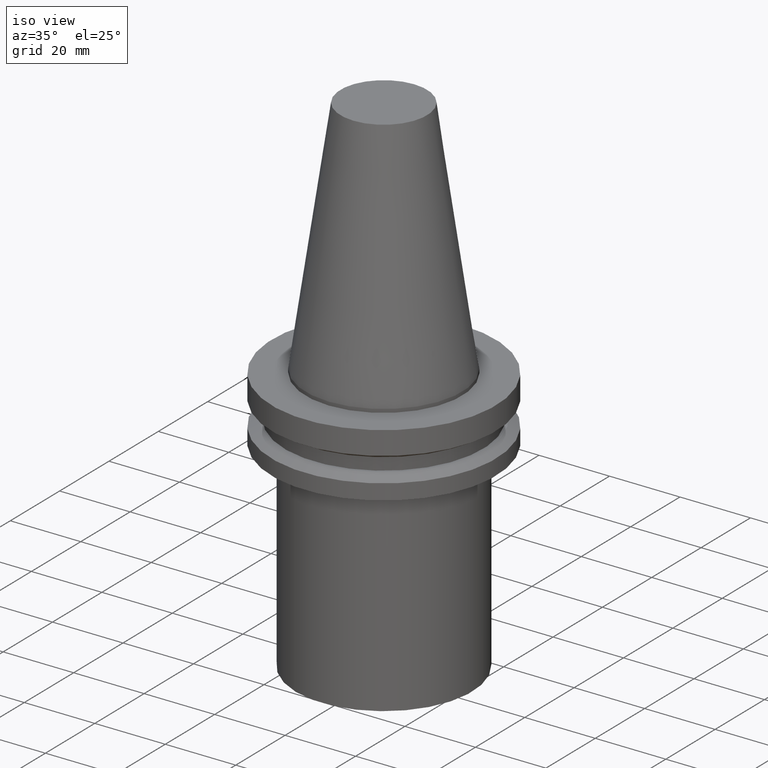
[diagram: clean part render]
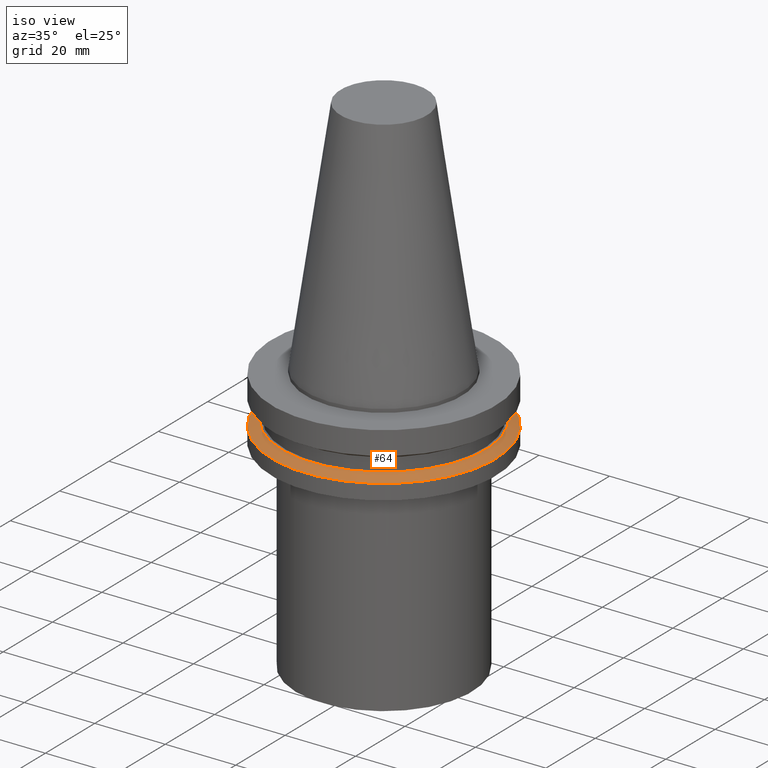
[diagram: same view with one face highlighted and labeled with its STEP entity id]
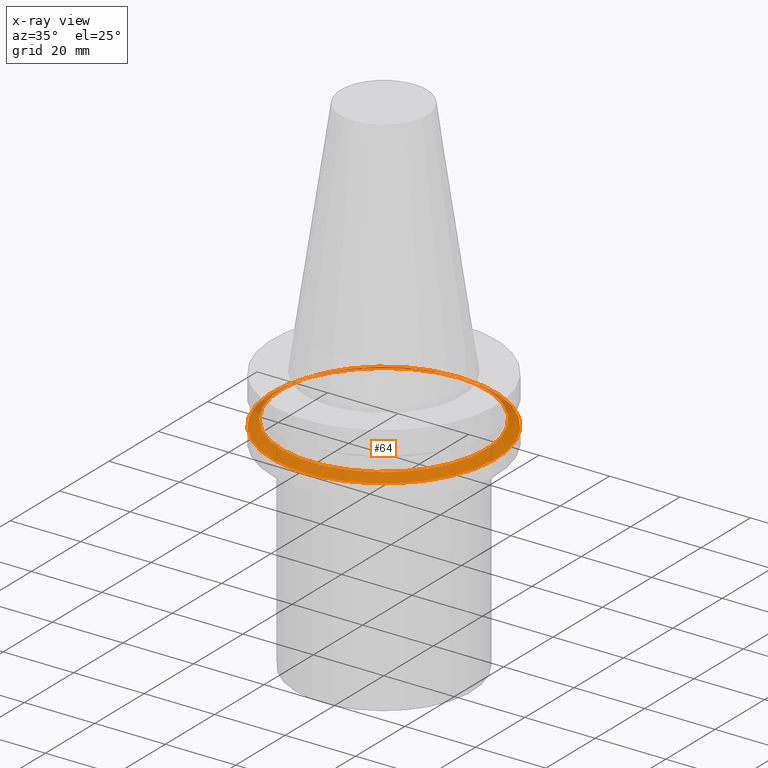
[diagram: x-ray of the same camera — body ghosted, the highlighted face saturated]
A machine part, iso view. The second image highlights one B-rep face of the part: STEP entity #64.
The next image is the same camera in x-ray: the body ghosted, the highlighted face saturated — about 11% of this face is hidden behind the body in this view.
In plain terms, the highlighted conical surface has half-angle 60 deg.
Its self-contained STEP definition (entity closure, byte-faithful):
#64=ADVANCED_FACE('Unnamed[1]',(#161,#162),#163,.T.);
#116=EDGE_CURVE('Unnamed[1]',#242,#242,#243,.T.);
#125=EDGE_CURVE('Unnamed[1]',#256,#256,#257,.T.);
#161=FACE_BOUND('',#290,.T.);
#162=FACE_BOUND('',#291,.T.);
#163=CONICAL_SURFACE('',#292,30.3587792269259,1.0471975511966);
#242=VERTEX_POINT('',#390);
#243=CIRCLE('',#391,31.7499999999999);
#256=VERTEX_POINT('',#408);
#257=CIRCLE('',#409,28.9675584538519);
#290=EDGE_LOOP('',(#433));
#291=EDGE_LOOP('',(#434));
#292=AXIS2_PLACEMENT_3D('',#435,#436,#437);
#390=CARTESIAN_POINT('',(8.96835999945531E-016,31.7499999999999,-14.6464433756728));
#391=AXIS2_PLACEMENT_3D('',#524,#525,#526);
#408=CARTESIAN_POINT('',(7.98469713044065E-016,28.967558453852,-13.0399999999998));
#409=AXIS2_PLACEMENT_3D('',#539,#540,#541);
#433=ORIENTED_EDGE('',*,*,#116,.F.);
#434=ORIENTED_EDGE('',*,*,#125,.T.);
#435=CARTESIAN_POINT('',(8.476528564948E-016,7.32324871130101E-015,-13.8432216878363));
#436=DIRECTION('',(6.12323399573677E-017,8.51860445125027E-016,-1.0));
#437=DIRECTION('',(-5.69885611028985E-032,1.0,8.51860445125027E-016));
#524=CARTESIAN_POINT('',(8.96835999945533E-016,8.00748149583545E-015,-14.6464433756728));
#525=DIRECTION('',(6.12323399573677E-017,8.51860445124987E-016,-1.0));
#526=DIRECTION('',(-5.69885611028992E-032,1.0,8.51860445124986E-016));
#539=CARTESIAN_POINT('',(7.98469713044066E-016,6.63901592676657E-015,-13.0399999999999));
#540=DIRECTION('',(6.12323399573677E-017,8.51860445125015E-016,-1.0));
#541=DIRECTION('',(-5.69885611028976E-032,1.0,8.51860445125015E-016));